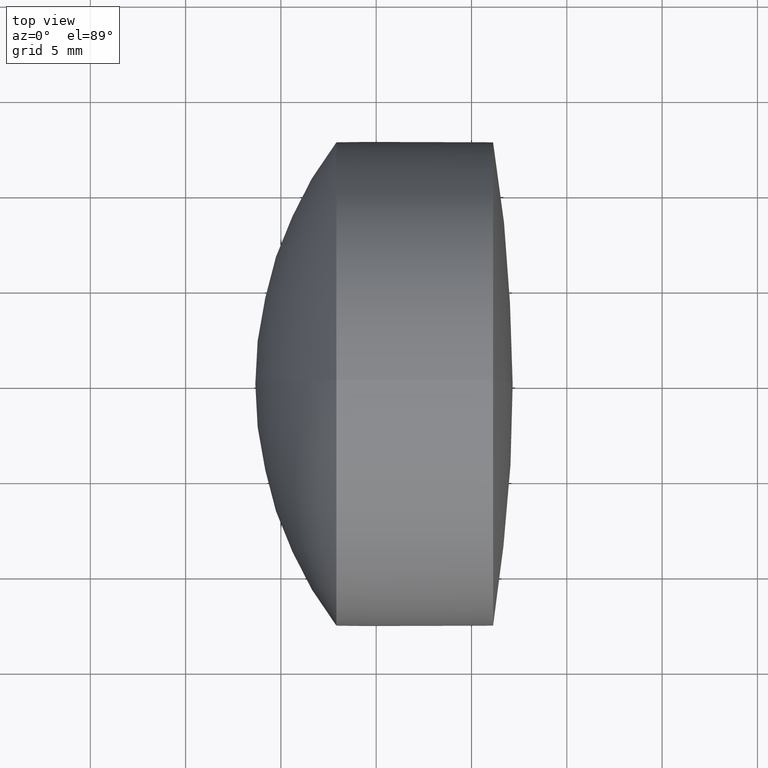
[diagram: clean part render]
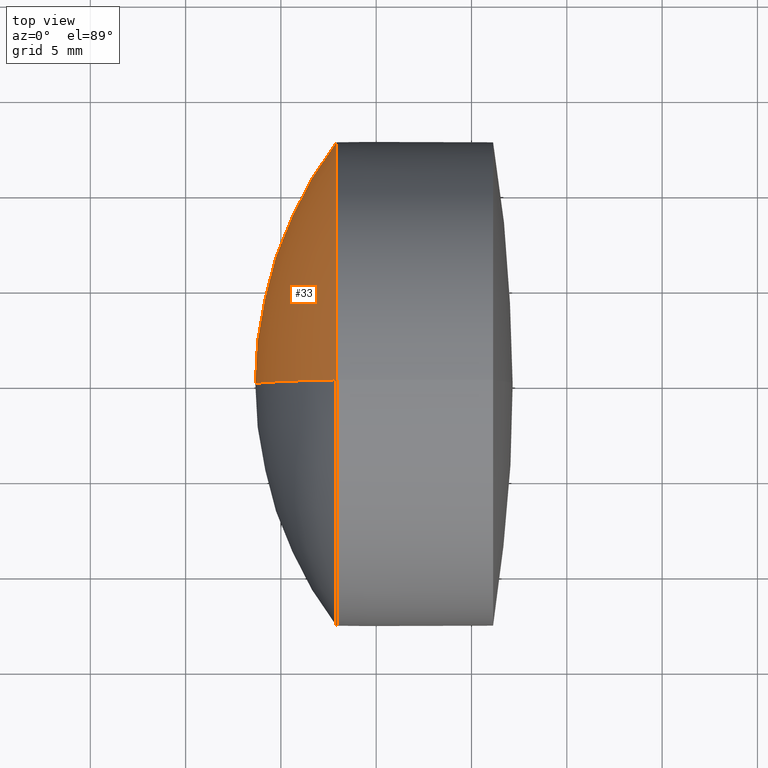
[diagram: same view with one face highlighted and labeled with its STEP entity id]
A machine part, top view. The second image highlights one B-rep face of the part: STEP entity #33.
In plain terms, the highlighted spherical surface has radius 21.09 mm.
Its self-contained STEP definition (entity closure, byte-faithful):
#25 = CARTESIAN_POINT ( 'NONE',  ( 272.9115847359946700, 0.0000000000000000000, 0.0000000000000000000 ) ) ;
#33 = ADVANCED_FACE ( 'NONE', ( #284 ), #50, .T. ) ;
#50 = SPHERICAL_SURFACE ( 'NONE', #263, 21.08999999999999600 ) ;
#51 = CARTESIAN_POINT ( 'NONE',  ( 289.7489865545650800, 0.0000000000000000000, 6.938893904096653600E-015 ) ) ;
#68 = ORIENTED_EDGE ( 'NONE', *, *, #191, .F. ) ;
#91 = CARTESIAN_POINT ( 'NONE',  ( 289.7489865545650800, 0.0000000000000000000, 6.938893904096653600E-015 ) ) ;
#95 = DIRECTION ( 'NONE',  ( 0.0000000000000000000, -1.000000000000000000, -1.224646799147353200E-016 ) ) ;
#100 = DIRECTION ( 'NONE',  ( -1.000000000000000000, -0.0000000000000000000, -0.0000000000000000000 ) ) ;
#106 = CIRCLE ( 'NONE', #238, 21.08999999999999600 ) ;
#116 = DIRECTION ( 'NONE',  ( 0.0000000000000000000, 0.0000000000000000000, 1.000000000000000000 ) ) ;
#120 = AXIS2_PLACEMENT_3D ( 'NONE', #25, #100, #116 ) ;
#139 = VERTEX_POINT ( 'NONE', #250 ) ;
#146 = CARTESIAN_POINT ( 'NONE',  ( 268.6589865545651000, 0.0000000000000000000, 5.647503854395770100E-015 ) ) ;
#149 = EDGE_LOOP ( 'NONE', ( #68, #291, #280 ) ) ;
#175 = CIRCLE ( 'NONE', #293, 21.08999999999999600 ) ;
#188 = EDGE_CURVE ( 'NONE', #318, #252, #175, .T. ) ;
#191 = EDGE_CURVE ( 'NONE', #139, #252, #106, .T. ) ;
#199 = DIRECTION ( 'NONE',  ( 0.0000000000000000000, 0.0000000000000000000, -1.000000000000000000 ) ) ;
#208 = CIRCLE ( 'NONE', #120, 12.70000000000000600 ) ;
#210 = EDGE_CURVE ( 'NONE', #139, #318, #208, .T. ) ;
#215 = CARTESIAN_POINT ( 'NONE',  ( 272.9115847359946700, 0.0000000000000000000, -12.69999999999999900 ) ) ;
#232 = DIRECTION ( 'NONE',  ( -0.0000000000000000000, -1.000000000000000000, -0.0000000000000000000 ) ) ;
#238 = AXIS2_PLACEMENT_3D ( 'NONE', #91, #95, #279 ) ;
#250 = CARTESIAN_POINT ( 'NONE',  ( 272.9115847359946700, -1.555301434917138400E-015, 12.70000000000000600 ) ) ;
#252 = VERTEX_POINT ( 'NONE', #146 ) ;
#263 = AXIS2_PLACEMENT_3D ( 'NONE', #343, #232, #199 ) ;
#279 = DIRECTION ( 'NONE',  ( 0.0000000000000000000, 1.224646799147353500E-016, -1.000000000000000000 ) ) ;
#280 = ORIENTED_EDGE ( 'NONE', *, *, #188, .T. ) ;
#284 = FACE_OUTER_BOUND ( 'NONE', #149, .T. ) ;
#288 = DIRECTION ( 'NONE',  ( 0.0000000000000000000, 0.0000000000000000000, 1.000000000000000000 ) ) ;
#291 = ORIENTED_EDGE ( 'NONE', *, *, #210, .T. ) ;
#293 = AXIS2_PLACEMENT_3D ( 'NONE', #51, #299, #288 ) ;
#299 = DIRECTION ( 'NONE',  ( 0.0000000000000000000, 1.000000000000000000, -0.0000000000000000000 ) ) ;
#318 = VERTEX_POINT ( 'NONE', #215 ) ;
#343 = CARTESIAN_POINT ( 'NONE',  ( 289.7489865545650800, 0.0000000000000000000, 6.938893904096653600E-015 ) ) ;